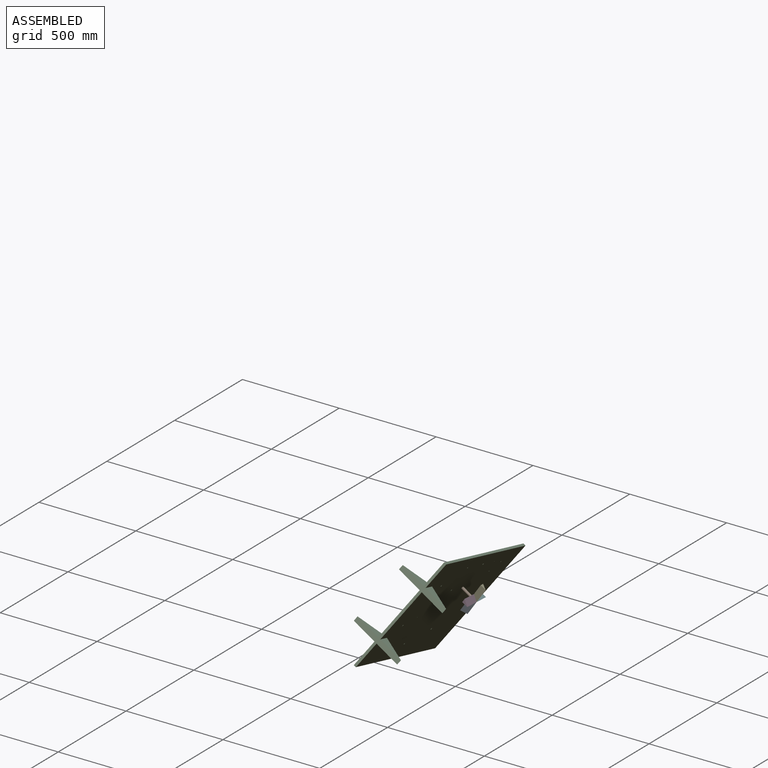
[diagram: assembled view]
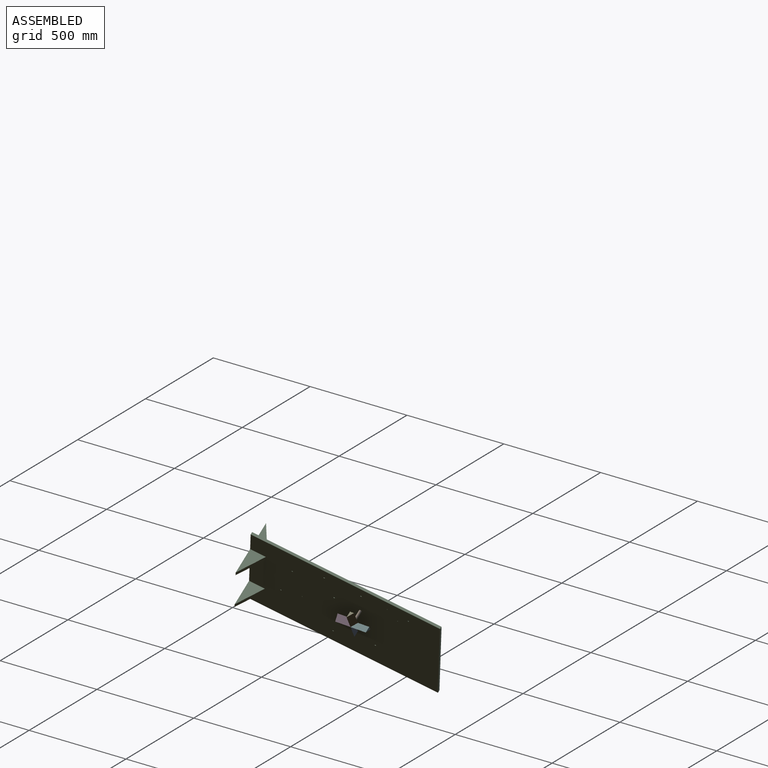
[diagram: assembled view, second angle]
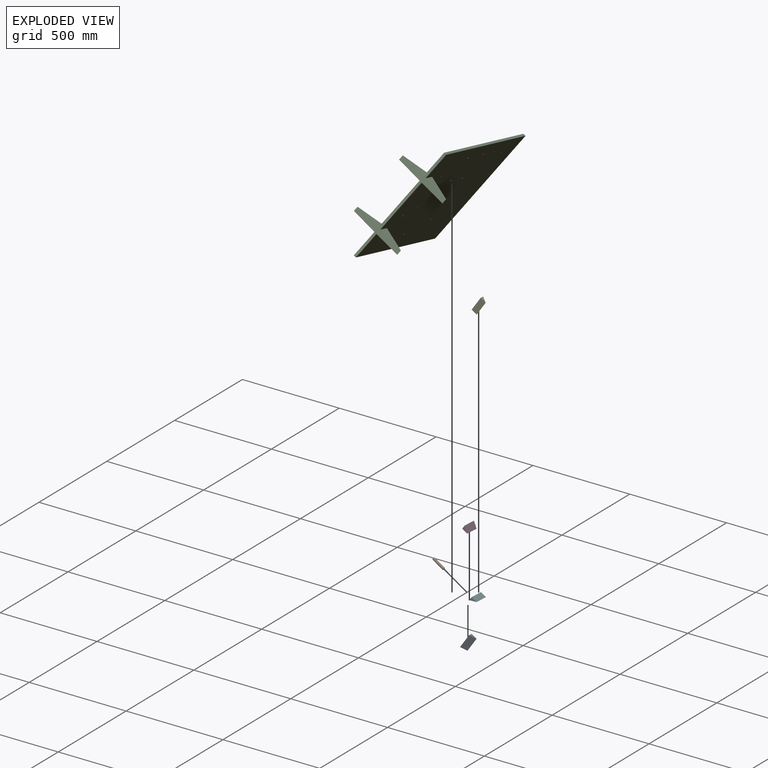
[diagram: exploded view]
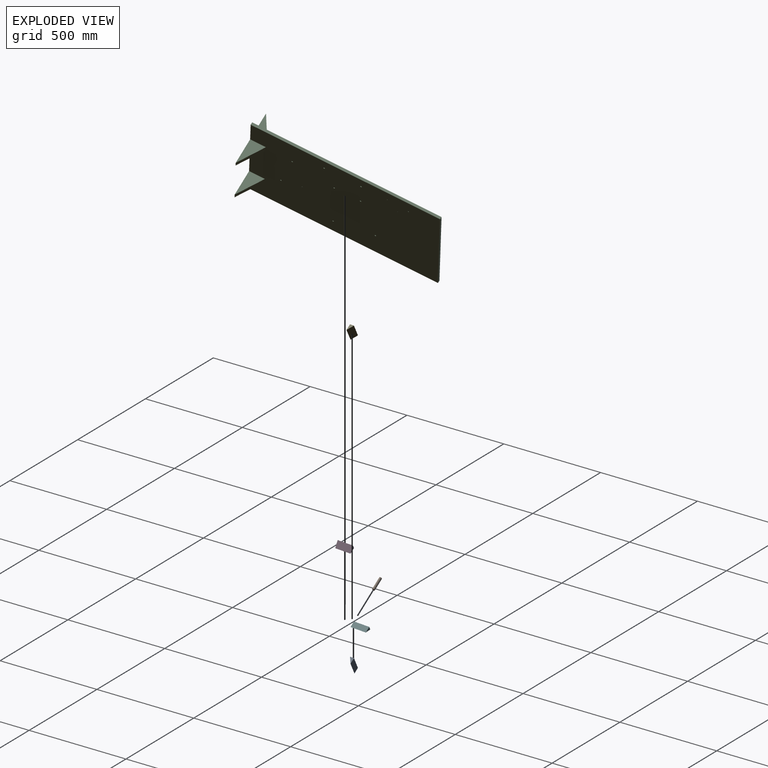
[diagram: exploded view, second angle]
ASSEMBLY  parts=6 mates=5
PART A: 5 faces, bbox 67x19.8x80.5 mm
  f0: plane 80.54x67.04mm, normal (0,1,0), area 2324.6mm2, adj f1,f2,f3,f4
  f1: plane 63.95x41.44mm, normal (-0.84,0,0.54), area 1506.5mm2, adj f0,f2,f3,f4
  f2: plane 80.54x67.04mm, normal (0.46,-0.84,-0.3), area 2770.1mm2, adj f0,f1,f3,f4
  f3: plane 25.6x19.77mm, normal (0.54,0,0.84), area 301.6mm2, adj f0,f1,f2
  f4: plane 25.6x19.77mm, normal (-0.54,0,-0.84), area 301.6mm2, adj f0,f1,f2
PART B: 3 faces, bbox 60.2x12.7x45.2 mm
  f0: cylinder r=6.35mm len=60.2mm, axis (-0.84,0,0.54), area 2533.5mm2, adj f1,f2
  f1: plane 12.7x10.66mm, normal (0.84,0,-0.54), area 126.7mm2, adj f0
  f2: plane 12.7x10.66mm, normal (-0.84,0,0.54), area 126.7mm2, adj f0
PART C: 68 faces, bbox 609.6x266.7x914.4 mm
  f0: plane 914.4x609.6mm, normal (0,1,0), area 553547.3mm2, adj f2,f3,f4,f5,f62,f63,f64,f65
  f1: plane 914.4x609.6mm, normal (0,-1,0), area 553173.5mm2, adj f2,f3,f4,f5,f6,f7,f8,f9
  f2: plane 914.4x12.7mm, normal (1,0,0), area 11612.9mm2, adj f0,f1,f3,f5
  f3: plane 609.6x12.7mm, normal (0,0,1), area 7741.9mm2, adj f0,f1,f2,f4
  f4: plane 914.4x12.7mm, normal (-1,0,0), area 11612.9mm2, adj f0,f1,f3,f5
  f5: plane 609.6x266.7mm, normal (0,0,-1), area 20645.1mm2, adj f0,f1,f2,f4,f56,f57,f58,f59
  f6: plane 6.35x6.35mm, normal (1,0,0), area 40.3mm2, adj f1,f7,f9,f10
  f7: plane 6.35x6.35mm, normal (0,0,1), area 40.3mm2, adj f1,f6,f8,f10
  f8: plane 6.35x6.35mm, normal (-1,0,0), area 40.3mm2, adj f1,f7,f9,f10
  f9: plane 6.35x6.35mm, normal (0,0,-1), area 40.3mm2, adj f1,f6,f8,f10
  f10: plane 6.35x6.35mm, normal (0,-1,0), area 40.3mm2, adj f6,f7,f8,f9
  f11: plane 6.35x6.35mm, normal (-1,0,0), area 40.3mm2, adj f1,f12,f14,f15
  f12: plane 6.35x5.59mm, normal (0,0,-1), area 35.5mm2, adj f1,f11,f13,f15
  f13: plane 6.35x6.35mm, normal (1,0,0), area 40.3mm2, adj f1,f12,f14,f15
  f14: plane 6.35x5.59mm, normal (0,0,1), area 35.5mm2, adj f1,f11,f13,f15
  f15: plane 6.35x5.59mm, normal (0,-1,0), area 35.5mm2, adj f11,f12,f13,f14
  f16: plane 6.35x6.35mm, normal (0,0,1), area 40.3mm2, adj f1,f17,f19,f20
  f17: plane 6.35x6.35mm, normal (-1,0,0), area 40.3mm2, adj f1,f16,f18,f20
  f18: plane 6.35x6.35mm, normal (0,0,-1), area 40.3mm2, adj f1,f17,f19,f20
  f19: plane 6.35x6.35mm, normal (1,0,0), area 40.3mm2, adj f1,f16,f18,f20
  f20: plane 6.35x6.35mm, normal (0,-1,0), area 40.3mm2, adj f16,f17,f18,f19
  f21: plane 6.35x6.35mm, normal (-1,0,0), area 40.3mm2, adj f1,f22,f24,f25
  f22: plane 6.35x6.35mm, normal (0,0,-1), area 40.3mm2, adj f1,f21,f23,f25
  f23: plane 6.35x6.35mm, normal (1,0,0), area 40.3mm2, adj f1,f22,f24,f25
  f24: plane 6.35x6.35mm, normal (0,0,1), area 40.3mm2, adj f1,f21,f23,f25
  f25: plane 6.35x6.35mm, normal (0,-1,0), area 40.3mm2, adj f21,f22,f23,f24
  f26: plane 6.35x6.35mm, normal (1,0,0), area 40.3mm2, adj f1,f27,f29,f30
  f27: plane 6.35x6.35mm, normal (0,0,1), area 40.3mm2, adj f1,f26,f28,f30
  f28: plane 6.35x6.35mm, normal (-1,0,0), area 40.3mm2, adj f1,f27,f29,f30
  f29: plane 6.35x6.35mm, normal (0,0,-1), area 40.3mm2, adj f1,f26,f28,f30
  f30: plane 6.35x6.35mm, normal (0,-1,0), area 40.3mm2, adj f26,f27,f28,f29
  f31: plane 6.35x6.35mm, normal (1,0,0), area 40.3mm2, adj f1,f32,f34,f35
  f32: plane 6.35x6.35mm, normal (0,0,1), area 40.3mm2, adj f1,f31,f33,f35
  f33: plane 6.35x6.35mm, normal (-1,0,0), area 40.3mm2, adj f1,f32,f34,f35
  f34: plane 6.35x6.35mm, normal (0,0,-1), area 40.3mm2, adj f1,f31,f33,f35
  f35: plane 6.35x6.35mm, normal (0,-1,0), area 40.3mm2, adj f31,f32,f33,f34
  f36: plane 6.35x6.35mm, normal (1,0,0), area 40.3mm2, adj f1,f37,f39,f40
  f37: plane 6.35x6.35mm, normal (0,0,1), area 40.3mm2, adj f1,f36,f38,f40
  f38: plane 6.35x6.35mm, normal (-1,0,0), area 40.3mm2, adj f1,f37,f39,f40
  f39: plane 6.35x6.35mm, normal (0,0,-1), area 40.3mm2, adj f1,f36,f38,f40
  f40: plane 6.35x6.35mm, normal (0,-1,0), area 40.3mm2, adj f36,f37,f38,f39
  f41: cylinder r=3mm len=6.35mm, axis (0,-1,0), area 119.6mm2, adj f1,f42
  f42: plane 6x6mm, normal (0,-1,0), area 28.2mm2, adj f41
  f43: cylinder r=1.63mm len=6.35mm, axis (0,-1,0), area 64.9mm2, adj f1,f44
  f44: plane 3.25x3.25mm, normal (0,-1,0), area 8.3mm2, adj f43
  f45: plane 6.35x6.35mm, normal (1,0,0), area 40.3mm2, adj f1,f46,f48,f49
  f46: plane 6.35x6.35mm, normal (0,0,1), area 40.3mm2, adj f1,f45,f47,f49
  f47: plane 6.35x6.35mm, normal (-1,0,0), area 40.3mm2, adj f1,f46,f48,f49
  f48: plane 6.35x6.35mm, normal (0,0,-1), area 40.3mm2, adj f1,f45,f47,f49
  f49: plane 6.35x6.35mm, normal (0,-1,0), area 40.3mm2, adj f45,f46,f47,f48
  f50: cylinder r=1.79mm len=6.35mm, axis (0,-1,0), area 71.3mm2, adj f1,f51
  f51: plane 3.57x3.57mm, normal (0,-1,0), area 10mm2, adj f50
  f52: cylinder r=1.7mm len=6.35mm, axis (0,-1,0), area 67.8mm2, adj f1,f53
  f53: plane 3.4x3.4mm, normal (0,-1,0), area 9.1mm2, adj f52
  f54: cylinder r=0.33mm len=6.35mm, axis (0,-1,0), area 13.3mm2, adj f1,f55
  f55: plane 0.67x0.67mm, normal (0,-1,0), area 0.3mm2, adj f54
  f56: plane 127x76.2mm, normal (-1,0,0), area 4838.7mm2, adj f1,f5,f58
  f57: plane 127x76.2mm, normal (1,0,0), area 4838.7mm2, adj f1,f5,f58
  f58: plane 127x76.2mm, normal (0,-0.51,0.86), area 3761.9mm2, adj f1,f5,f56,f57
  f59: plane 127x76.2mm, normal (1,0,0), area 4838.7mm2, adj f1,f5,f61
  f60: plane 127x76.2mm, normal (-1,0,0), area 4838.7mm2, adj f1,f5,f61
  f61: plane 127x76.2mm, normal (0,-0.51,0.86), area 3761.9mm2, adj f1,f5,f59,f60
  f62: plane 127x76.2mm, normal (-1,0,0), area 4838.7mm2, adj f0,f5,f64
  f63: plane 127x76.2mm, normal (1,0,0), area 4838.7mm2, adj f0,f5,f64
  f64: plane 127x76.2mm, normal (0,0.51,0.86), area 3761.9mm2, adj f0,f5,f62,f63
  f65: plane 127x76.2mm, normal (1,0,0), area 4838.7mm2, adj f0,f5,f67
  f66: plane 127x76.2mm, normal (-1,0,0), area 4838.7mm2, adj f0,f5,f67
  f67: plane 127x76.2mm, normal (0,0.51,0.86), area 3761.9mm2, adj f0,f5,f65,f66
PART D: 5 faces, bbox 25.6x76.2x33.2 mm
  f0: plane 76.2x25.6mm, normal (-0.54,0,-0.84), area 2324.6mm2, adj f1,f2,f3,f4
  f1: plane 76.2x16.59mm, normal (-0.84,0,0.54), area 1506.5mm2, adj f0,f2,f3,f4
  f2: plane 76.2x33.18mm, normal (0.91,0,0.41), area 2770.1mm2, adj f0,f1,f3,f4
  f3: plane 33.18x25.6mm, normal (0,1,0), area 301.6mm2, adj f0,f1,f2
  f4: plane 33.18x25.6mm, normal (0,-1,0), area 301.6mm2, adj f0,f1,f2
PART E: 5 faces, bbox 67x19.8x80.5 mm
  f0: plane 80.54x67.04mm, normal (0,-1,0), area 2324.6mm2, adj f1,f2,f3,f4
  f1: plane 63.95x41.44mm, normal (-0.84,0,0.54), area 1506.5mm2, adj f0,f2,f3,f4
  f2: plane 80.54x67.04mm, normal (0.46,0.84,-0.3), area 2770.1mm2, adj f0,f1,f3,f4
  f3: plane 25.6x19.77mm, normal (-0.54,0,-0.84), area 301.6mm2, adj f0,f1,f2
  f4: plane 25.6x19.77mm, normal (0.54,0,0.84), area 301.6mm2, adj f0,f1,f2
PART F: 5 faces, bbox 36.4x76.2x16.6 mm
  f0: plane 76.2x25.6mm, normal (0.54,0,0.84), area 2324.6mm2, adj f1,f2,f3,f4
  f1: plane 76.2x16.59mm, normal (-0.84,0,0.54), area 1506.5mm2, adj f0,f2,f3,f4
  f2: plane 76.2x36.35mm, normal (0,0,-1), area 2770.1mm2, adj f0,f1,f3,f4
  f3: plane 36.35x16.59mm, normal (0,-1,0), area 301.6mm2, adj f0,f1,f2
  f4: plane 36.35x16.59mm, normal (0,1,0), area 301.6mm2, adj f0,f1,f2
PLACE A rot(axis=(-0.84,0,0.54),6.4deg) t=(-411.81,100.01,157.51)mm
PLACE B rot(axis=(0.36,0.75,0.56),180deg) t=(-417.24,32.71,261.32)mm
PLACE C rot(axis=(-0.46,0.69,0.56),155.3deg) t=(-527.35,-84.22,163.77)mm
PLACE D rot(axis=(-0.84,0,0.54),6.4deg) t=(-411.81,100.01,157.51)mm
PLACE E rot(axis=(-0.84,0,0.54),6.4deg) t=(-411.81,100.01,157.51)mm
PLACE F rot(axis=(-0.84,0,0.54),6.4deg) t=(-411.81,100.01,157.51)mm
MATE fastened D.f1 <-> A.f1  axis (-0.84,0,0.54) through (-432.83,24.28,181.18)mm
MATE fastened A.f1 <-> E.f1  axis (-0.84,0,0.54) through (-432.83,24.28,181.18)mm
MATE fastened F.f1 <-> A.f1  axis (-0.84,0,0.54) through (-432.83,24.28,181.18)mm
MATE fastened A.f1 <-> B.f0  axis (-0.84,0,0.54) through (-432.83,24.28,181.18)mm
MATE revolute B.f0 <-> C.f30  axis (-0.84,0,0.54) through (-486.12,24.28,215.71)mm
